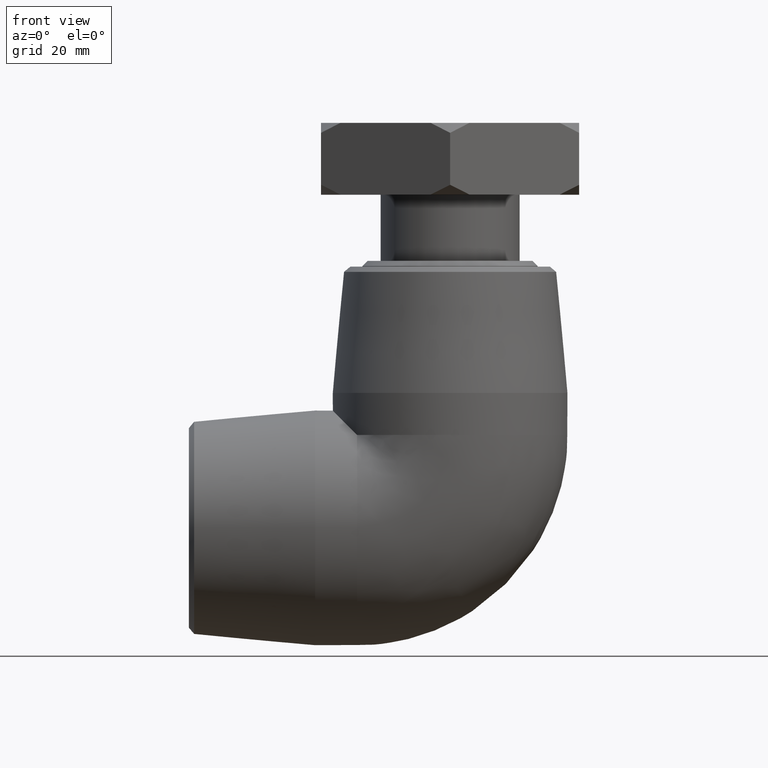
[diagram: clean part render]
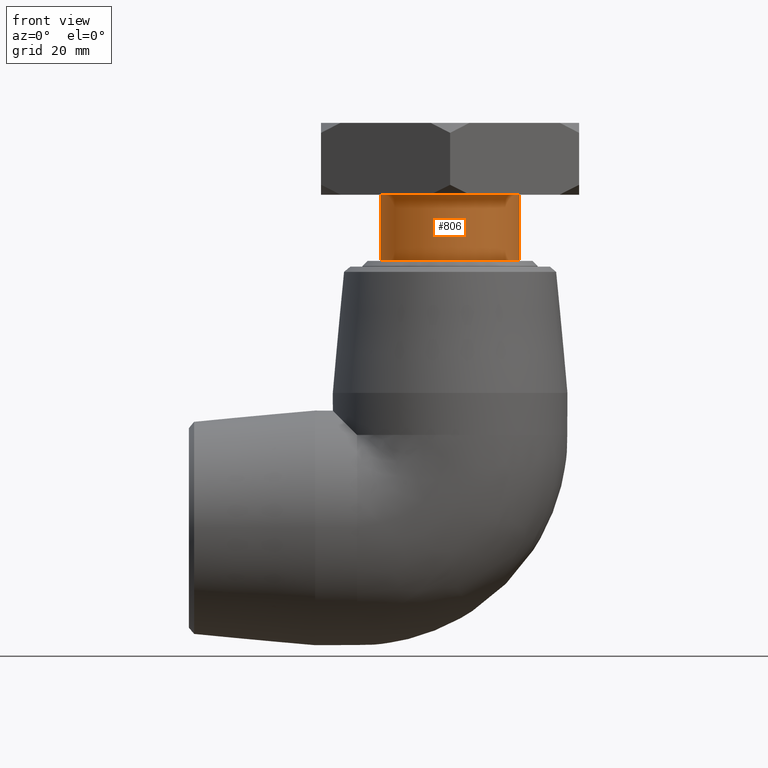
[diagram: same view with one face highlighted and labeled with its STEP entity id]
A machine part, front view. The second image highlights one B-rep face of the part: STEP entity #806.
In plain terms, the highlighted cylindrical surface (bore or boss wall) has radius 19.8296 mm, axis along (-0, 0, -1).
Its self-contained STEP definition (entity closure, byte-faithful):
#86=CYLINDRICAL_SURFACE('',#907,19.8296);
#141=FACE_BOUND('',#285,.T.);
#199=FACE_OUTER_BOUND('',#284,.T.);
#284=EDGE_LOOP('',(#702));
#285=EDGE_LOOP('',(#703));
#338=CIRCLE('',#868,19.8296);
#343=CIRCLE('',#877,19.8296);
#414=VERTEX_POINT('',#1357);
#419=VERTEX_POINT('',#1371);
#510=EDGE_CURVE('',#414,#414,#338,.T.);
#515=EDGE_CURVE('',#419,#419,#343,.T.);
#702=ORIENTED_EDGE('',*,*,#515,.F.);
#703=ORIENTED_EDGE('',*,*,#510,.T.);
#806=ADVANCED_FACE('',(#199,#141),#86,.T.);
#868=AXIS2_PLACEMENT_3D('',#1358,#1038,#1039);
#877=AXIS2_PLACEMENT_3D('',#1372,#1056,#1057);
#907=AXIS2_PLACEMENT_3D('',#1487,#1116,#1117);
#1038=DIRECTION('center_axis',(-2.3843715965104E-16,0.,-1.));
#1039=DIRECTION('ref_axis',(1.,0.,-2.3843715965104E-16));
#1056=DIRECTION('center_axis',(-2.3843715965104E-16,0.,-1.));
#1057=DIRECTION('ref_axis',(1.,0.,-2.3843715965104E-16));
#1116=DIRECTION('center_axis',(-2.3843715965104E-16,0.,-1.));
#1117=DIRECTION('ref_axis',(-1.,0.,1.98307743161103E-16));
#1357=CARTESIAN_POINT('',(-19.8296,0.,95.));
#1358=CARTESIAN_POINT('Origin',(2.26515301668488E-14,0.,95.));
#1371=CARTESIAN_POINT('',(-19.8296,0.,76.14));
#1372=CARTESIAN_POINT('Origin',(1.81546053358302E-14,0.,76.14));
#1487=CARTESIAN_POINT('Origin',(2.04030677513395E-14,0.,85.57));